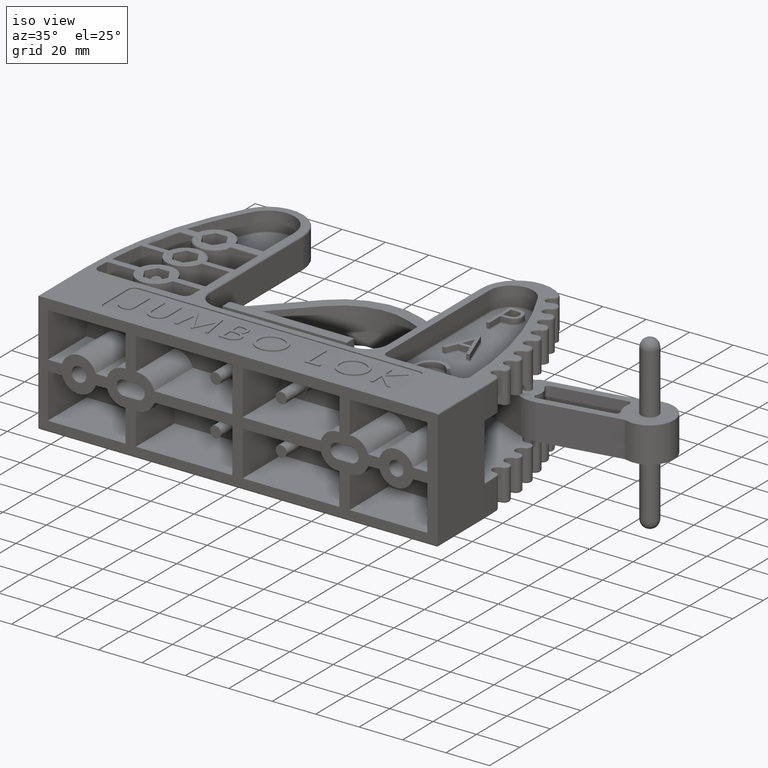
[diagram: clean part render]
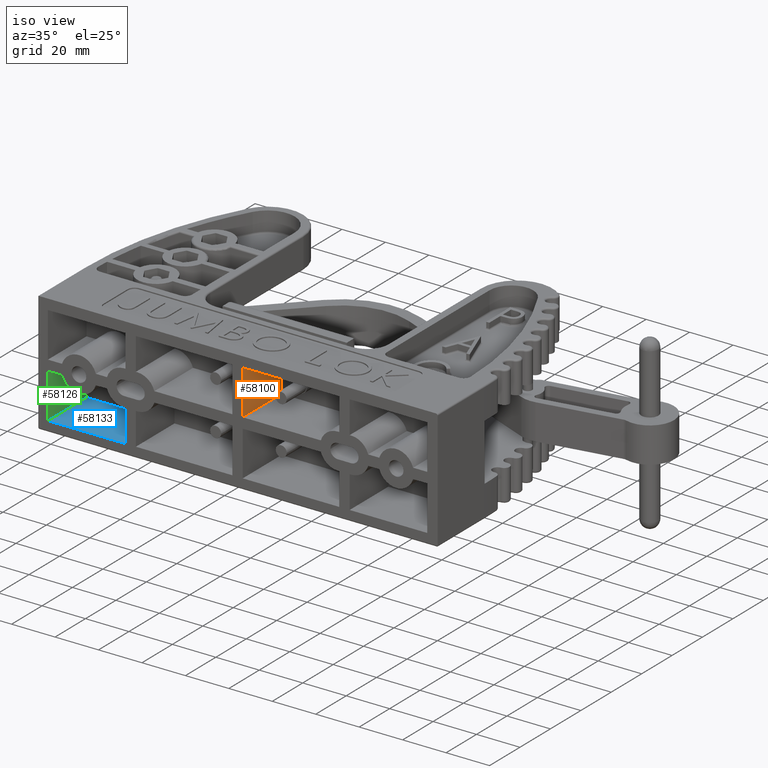
[diagram: same view with three faces highlighted in distinct colors, each labeled with its STEP entity id]
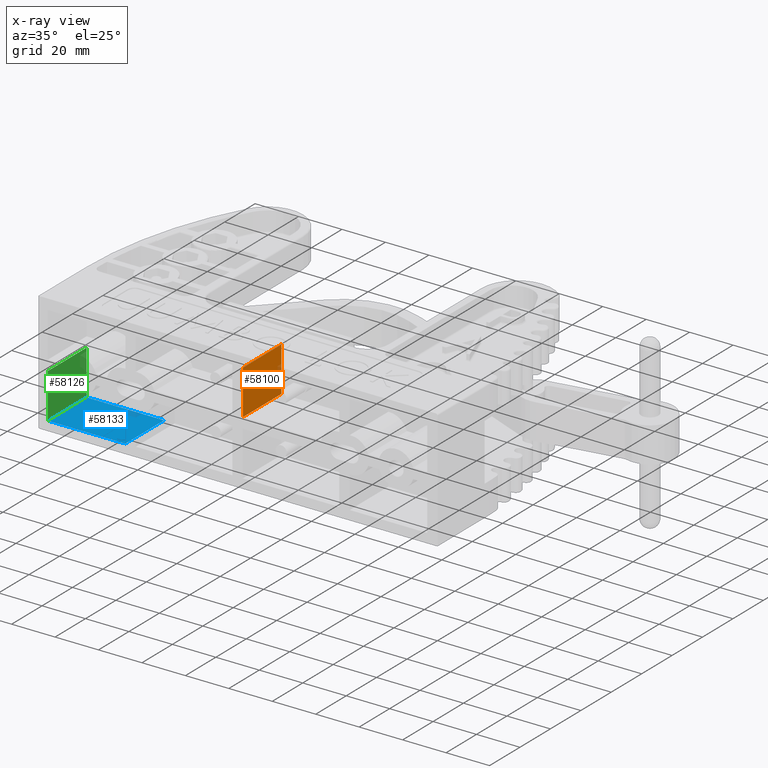
[diagram: x-ray of the same camera — body ghosted, the three highlighted faces saturated]
A machine part, iso view with three faces highlighted in distinct colors.
The next image is the same camera in x-ray (body ghosted, the three faces saturated) — at least one of them is partly hidden behind the body in this view.
Their STEP definitions:

[orange] entity #58100 — the highlighted planar face has unit normal (-1, -0, 0).
#15469 = EDGE_CURVE ( 'NONE', #53316, #52692, #44204, .T. ) ;
#15475 = EDGE_CURVE ( 'NONE', #53317, #52693, #44209, .T. ) ;
#16558 = EDGE_CURVE ( 'NONE', #52692, #52693, #60458, .T. ) ;
#17753 = EDGE_LOOP ( 'NONE', ( #25041, #25042, #25043, #25044 ) ) ;
#25041 = ORIENTED_EDGE ( 'NONE', *, *, #16558, .T. ) ;
#25042 = ORIENTED_EDGE ( 'NONE', *, *, #15475, .F. ) ;
#25043 = ORIENTED_EDGE ( 'NONE', *, *, #54609, .F. ) ;
#25044 = ORIENTED_EDGE ( 'NONE', *, *, #15469, .T. ) ;
#35073 = CARTESIAN_POINT ( 'NONE',  ( 0.09374999999999951400, 6.831007317415448100E-016, 0.9062499999999996700 ) ) ;
#35074 = CARTESIAN_POINT ( 'NONE',  ( 0.09374999999999988900, 1.722102685062715900E-017, 0.09374999999999951400 ) ) ;
#36544 = LINE ( 'NONE', #39537, #36545 ) ;
#36545 = VECTOR ( 'NONE', #39538, 39.37007874015748100 ) ;
#36910 = AXIS2_PLACEMENT_3D ( 'NONE', #45324, #45330, #45331 ) ;
#37408 = CARTESIAN_POINT ( 'NONE',  ( 0.09374999999999972200, 1.000000000000000000, 0.9062499999999995600 ) ) ;
#37409 = CARTESIAN_POINT ( 'NONE',  ( 0.09374999999999969500, 1.000000000000000000, 0.09374999999999951400 ) ) ;
#39537 = CARTESIAN_POINT ( 'NONE',  ( 0.09374999999999972200, 1.000000000000000000, 0.9062499999999995600 ) ) ;
#39538 = DIRECTION ( 'NONE',  ( -2.101421533587894700E-017, -4.666093142064775000E-033, -1.000000000000000000 ) ) ;
#43158 = FACE_OUTER_BOUND ( 'NONE', #17753, .T. ) ;
#44204 = LINE ( 'NONE', #46273, #44205 ) ;
#44205 = VECTOR ( 'NONE', #46274, 39.37007874015748100 ) ;
#44209 = LINE ( 'NONE', #46283, #44216 ) ;
#44216 = VECTOR ( 'NONE', #46287, 39.37007874015748100 ) ;
#45324 = CARTESIAN_POINT ( 'NONE',  ( 0.09374999999999972200, 1.000000000000000000, 0.9062499999999995600 ) ) ;
#45325 = PLANE ( 'NONE',  #36910 ) ;
#45330 = DIRECTION ( 'NONE',  ( -1.000000000000000000, -1.836909530733566100E-016, 2.101421533587894400E-017 ) ) ;
#45331 = DIRECTION ( 'NONE',  ( 1.836909530733566100E-016, -1.000000000000000000, 0.0000000000000000000 ) ) ;
#46273 = CARTESIAN_POINT ( 'NONE',  ( 0.09374999999999972200, 1.000000000000000000, 0.9062499999999995600 ) ) ;
#46274 = DIRECTION ( 'NONE',  ( 1.836909530733566100E-016, -1.000000000000000000, -0.0000000000000000000 ) ) ;
#46283 = CARTESIAN_POINT ( 'NONE',  ( 0.09374999999999969500, 1.000000000000000000, 0.09374999999999951400 ) ) ;
#46287 = DIRECTION ( 'NONE',  ( 1.836909530733566100E-016, -1.000000000000000000, -0.0000000000000000000 ) ) ;
#52692 = VERTEX_POINT ( 'NONE', #35073 ) ;
#52693 = VERTEX_POINT ( 'NONE', #35074 ) ;
#53316 = VERTEX_POINT ( 'NONE', #37408 ) ;
#53317 = VERTEX_POINT ( 'NONE', #37409 ) ;
#54609 = EDGE_CURVE ( 'NONE', #53316, #53317, #36544, .T. ) ;
#58100 = ADVANCED_FACE ( 'NONE', ( #43158 ), #45325, .F. ) ;
#59501 = CARTESIAN_POINT ( 'NONE',  ( 0.09374999999999990300, 1.722102685062716500E-017, 0.9062499999999995600 ) ) ;
#59502 = DIRECTION ( 'NONE',  ( -2.101421533587894700E-017, -4.666093142064775000E-033, -1.000000000000000000 ) ) ;
#60458 = LINE ( 'NONE', #59501, #60459 ) ;
#60459 = VECTOR ( 'NONE', #59502, 39.37007874015748100 ) ;

[blue] entity #58133 — the highlighted planar face has unit normal (-0, -0, -1).
#15505 = EDGE_CURVE ( 'NONE', #54173, #52662, #44261, .T. ) ;
#15532 = EDGE_CURVE ( 'NONE', #54180, #52663, #44323, .T. ) ;
#15535 = EDGE_CURVE ( 'NONE', #54173, #54180, #44317, .T. ) ;
#16528 = EDGE_CURVE ( 'NONE', #52662, #52663, #60405, .T. ) ;
#25185 = ORIENTED_EDGE ( 'NONE', *, *, #16528, .T. ) ;
#25186 = ORIENTED_EDGE ( 'NONE', *, *, #15532, .F. ) ;
#25187 = ORIENTED_EDGE ( 'NONE', *, *, #15535, .F. ) ;
#25188 = ORIENTED_EDGE ( 'NONE', *, *, #15505, .T. ) ;
#35043 = CARTESIAN_POINT ( 'NONE',  ( -3.437500000000000000, 3.444205370125433000E-017, -0.9062500000000001100 ) ) ;
#35044 = CARTESIAN_POINT ( 'NONE',  ( -2.031250000000000000, -3.731222484302555700E-016, -0.9062500000000006700 ) ) ;
#36943 = AXIS2_PLACEMENT_3D ( 'NONE', #45443, #45455, #45456 ) ;
#38265 = CARTESIAN_POINT ( 'NONE',  ( -3.437500000000000000, 0.9999999999999993300, -0.9062500000000001100 ) ) ;
#38272 = CARTESIAN_POINT ( 'NONE',  ( -2.031250000000000000, 0.9999999999999995600, -0.9062500000000006700 ) ) ;
#43199 = FACE_OUTER_BOUND ( 'NONE', #49348, .T. ) ;
#44261 = LINE ( 'NONE', #46344, #44273 ) ;
#44273 = VECTOR ( 'NONE', #46349, 39.37007874015748100 ) ;
#44317 = LINE ( 'NONE', #46408, #44328 ) ;
#44323 = LINE ( 'NONE', #46406, #44324 ) ;
#44324 = VECTOR ( 'NONE', #46407, 39.37007874015748100 ) ;
#44328 = VECTOR ( 'NONE', #46413, 39.37007874015748100 ) ;
#45443 = CARTESIAN_POINT ( 'NONE',  ( -3.437500000000000000, 0.9999999999999993300, -0.9062500000000001100 ) ) ;
#45450 = PLANE ( 'NONE',  #36943 ) ;
#45455 = DIRECTION ( 'NONE',  ( -3.885294924322507200E-016, -7.136935276198761400E-032, -1.000000000000000000 ) ) ;
#45456 = DIRECTION ( 'NONE',  ( -1.000000000000000000, 0.0000000000000000000, 3.885294924322507200E-016 ) ) ;
#46344 = CARTESIAN_POINT ( 'NONE',  ( -3.437500000000000000, 0.9999999999999993300, -0.9062500000000001100 ) ) ;
#46349 = DIRECTION ( 'NONE',  ( 1.836909530733566100E-016, -1.000000000000000000, -0.0000000000000000000 ) ) ;
#46406 = CARTESIAN_POINT ( 'NONE',  ( -2.031250000000000000, 0.9999999999999995600, -0.9062500000000006700 ) ) ;
#46407 = DIRECTION ( 'NONE',  ( 1.836909530733566100E-016, -1.000000000000000000, -0.0000000000000000000 ) ) ;
#46408 = CARTESIAN_POINT ( 'NONE',  ( -3.437500000000000000, 0.9999999999999993300, -0.9062500000000001100 ) ) ;
#46413 = DIRECTION ( 'NONE',  ( 1.000000000000000000, 1.836909530733566100E-016, -3.885294924322507200E-016 ) ) ;
#49348 = EDGE_LOOP ( 'NONE', ( #25185, #25186, #25187, #25188 ) ) ;
#52662 = VERTEX_POINT ( 'NONE', #35043 ) ;
#52663 = VERTEX_POINT ( 'NONE', #35044 ) ;
#54173 = VERTEX_POINT ( 'NONE', #38265 ) ;
#54180 = VERTEX_POINT ( 'NONE', #38272 ) ;
#58133 = ADVANCED_FACE ( 'NONE', ( #43199 ), #45450, .F. ) ;
#59434 = CARTESIAN_POINT ( 'NONE',  ( -3.437500000000000000, -6.314376511896633700E-016, -0.9062500000000001100 ) ) ;
#59435 = DIRECTION ( 'NONE',  ( 1.000000000000000000, 1.836909530733566100E-016, -3.885294924322507200E-016 ) ) ;
#60405 = LINE ( 'NONE', #59434, #60406 ) ;
#60406 = VECTOR ( 'NONE', #59435, 39.37007874015748100 ) ;

[green] entity #58126 — the highlighted planar face has unit normal (-1, -0, 0).
#15502 = EDGE_CURVE ( 'NONE', #54174, #52664, #44267, .T. ) ;
#15505 = EDGE_CURVE ( 'NONE', #54173, #52662, #44261, .T. ) ;
#15520 = EDGE_CURVE ( 'NONE', #54174, #54173, #44301, .T. ) ;
#16527 = EDGE_CURVE ( 'NONE', #52664, #52662, #60403, .T. ) ;
#17771 = EDGE_LOOP ( 'NONE', ( #25157, #25158, #25159, #25160 ) ) ;
#25157 = ORIENTED_EDGE ( 'NONE', *, *, #16527, .T. ) ;
#25158 = ORIENTED_EDGE ( 'NONE', *, *, #15505, .F. ) ;
#25159 = ORIENTED_EDGE ( 'NONE', *, *, #15520, .F. ) ;
#25160 = ORIENTED_EDGE ( 'NONE', *, *, #15502, .T. ) ;
#35043 = CARTESIAN_POINT ( 'NONE',  ( -3.437500000000000000, 3.444205370125433000E-017, -0.9062500000000001100 ) ) ;
#35045 = CARTESIAN_POINT ( 'NONE',  ( -3.437500000000000000, -6.314376511896633700E-016, -0.09375000000000043000 ) ) ;
#36936 = AXIS2_PLACEMENT_3D ( 'NONE', #45419, #45429, #45430 ) ;
#38265 = CARTESIAN_POINT ( 'NONE',  ( -3.437500000000000000, 0.9999999999999993300, -0.9062500000000001100 ) ) ;
#38266 = CARTESIAN_POINT ( 'NONE',  ( -3.437500000000000000, 0.9999999999999993300, -0.09375000000000043000 ) ) ;
#43191 = FACE_OUTER_BOUND ( 'NONE', #17771, .T. ) ;
#44261 = LINE ( 'NONE', #46344, #44273 ) ;
#44267 = LINE ( 'NONE', #46342, #44268 ) ;
#44268 = VECTOR ( 'NONE', #46343, 39.37007874015748100 ) ;
#44273 = VECTOR ( 'NONE', #46349, 39.37007874015748100 ) ;
#44301 = LINE ( 'NONE', #46380, #44302 ) ;
#44302 = VECTOR ( 'NONE', #46381, 39.37007874015748100 ) ;
#45419 = CARTESIAN_POINT ( 'NONE',  ( -3.437500000000000000, 0.9999999999999993300, -0.09375000000000043000 ) ) ;
#45424 = PLANE ( 'NONE',  #36936 ) ;
#45429 = DIRECTION ( 'NONE',  ( -1.000000000000000000, -1.836909530733566100E-016, 0.0000000000000000000 ) ) ;
#45430 = DIRECTION ( 'NONE',  ( 1.836909530733566100E-016, -1.000000000000000000, 0.0000000000000000000 ) ) ;
#46342 = CARTESIAN_POINT ( 'NONE',  ( -3.437500000000000000, 0.9999999999999993300, -0.09375000000000043000 ) ) ;
#46343 = DIRECTION ( 'NONE',  ( 1.836909530733566100E-016, -1.000000000000000000, -0.0000000000000000000 ) ) ;
#46344 = CARTESIAN_POINT ( 'NONE',  ( -3.437500000000000000, 0.9999999999999993300, -0.9062500000000001100 ) ) ;
#46349 = DIRECTION ( 'NONE',  ( 1.836909530733566100E-016, -1.000000000000000000, -0.0000000000000000000 ) ) ;
#46380 = CARTESIAN_POINT ( 'NONE',  ( -3.437500000000000000, 0.9999999999999993300, -0.09375000000000043000 ) ) ;
#46381 = DIRECTION ( 'NONE',  ( 0.0000000000000000000, 0.0000000000000000000, -1.000000000000000000 ) ) ;
#52662 = VERTEX_POINT ( 'NONE', #35043 ) ;
#52664 = VERTEX_POINT ( 'NONE', #35045 ) ;
#54173 = VERTEX_POINT ( 'NONE', #38265 ) ;
#54174 = VERTEX_POINT ( 'NONE', #38266 ) ;
#58126 = ADVANCED_FACE ( 'NONE', ( #43191 ), #45424, .F. ) ;
#59432 = CARTESIAN_POINT ( 'NONE',  ( -3.437500000000000000, -6.314376511896633700E-016, -0.09375000000000043000 ) ) ;
#59433 = DIRECTION ( 'NONE',  ( 0.0000000000000000000, 0.0000000000000000000, -1.000000000000000000 ) ) ;
#60403 = LINE ( 'NONE', #59432, #60404 ) ;
#60404 = VECTOR ( 'NONE', #59433, 39.37007874015748100 ) ;